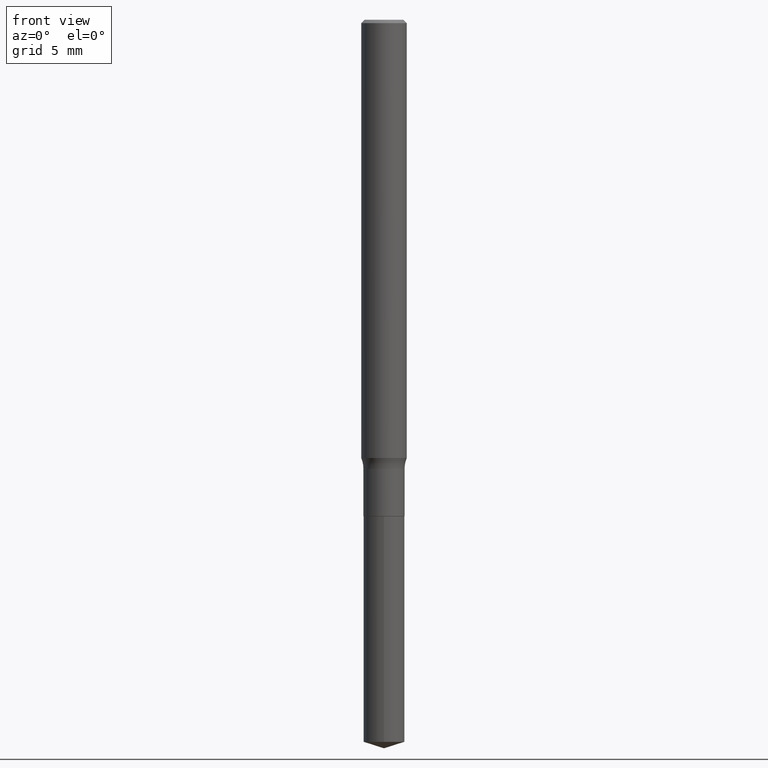
[diagram: clean part render]
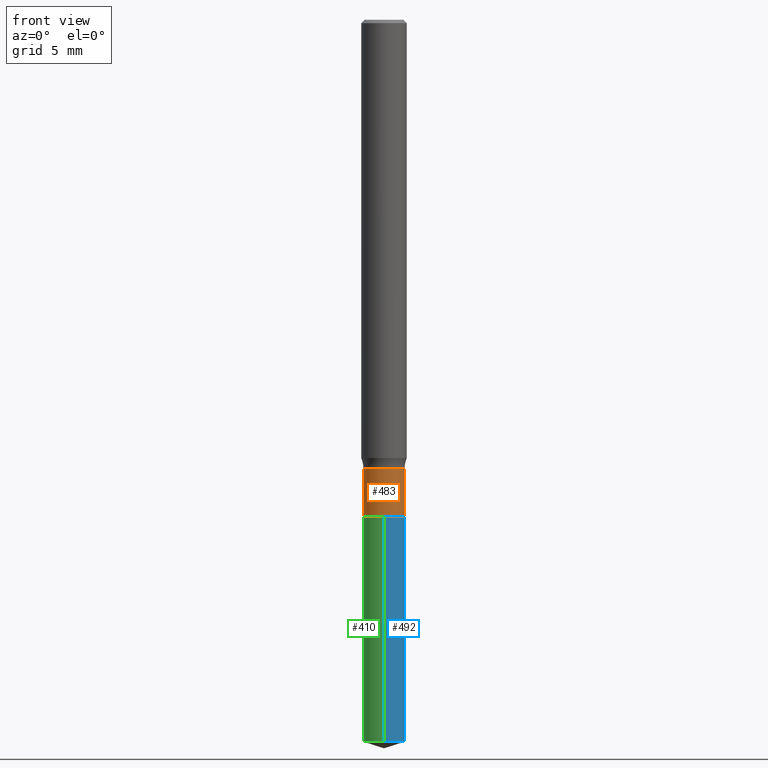
[diagram: same view with three faces highlighted in distinct colors, each labeled with its STEP entity id]
A machine part, front view with three faces highlighted in distinct colors.
Their STEP definitions:

[orange] entity #483 — the highlighted cylindrical surface (edge-blend (fillet) strip) has radius 1.4351 mm, axis along (-0, 0, 1).
#8 = VERTEX_POINT ( 'NONE', #432 ) ;
#25 = CARTESIAN_POINT ( 'NONE',  ( 0.05649999999999998079, -4.699533882082872201E-15, -1.232999999999999874 ) ) ;
#39 = DIRECTION ( 'NONE',  ( 1.000000000000000000, -6.982962677686265922E-15, 4.876176775795935793E-29 ) ) ;
#46 = DIRECTION ( 'NONE',  ( -2.445468806185136597E-29, 3.491481338843145583E-15, 1.000000000000000000 ) ) ;
#48 = VECTOR ( 'NONE', #217, 39.37007874015748143 ) ;
#58 = CARTESIAN_POINT ( 'NONE',  ( 0.05650000000000000161, -3.945373912892740553E-16, 2.755039878324703835E-30 ) ) ;
#113 = EDGE_CURVE ( 'NONE', #389, #264, #179, .T. ) ;
#115 = CIRCLE ( 'NONE', #206, 0.05650000000000000855 ) ;
#129 = ORIENTED_EDGE ( 'NONE', *, *, #221, .F. ) ;
#139 = DIRECTION ( 'NONE',  ( -2.445468806185136877E-29, 3.491481338843145188E-15, 1.000000000000000000 ) ) ;
#167 = FACE_OUTER_BOUND ( 'NONE', #353, .T. ) ;
#179 = LINE ( 'NONE', #335, #388 ) ;
#194 = CARTESIAN_POINT ( 'NONE',  ( 3.015263038026273343E-29, -4.304996490793598195E-15, -1.232999999999999874 ) ) ;
#197 = DIRECTION ( 'NONE',  ( -2.445468806185136597E-29, 3.491481338843145583E-15, 1.000000000000000000 ) ) ;
#201 = EDGE_CURVE ( 'NONE', #389, #8, #115, .T. ) ;
#206 = AXIS2_PLACEMENT_3D ( 'NONE', #235, #306, #378 ) ;
#212 = CARTESIAN_POINT ( 'NONE',  ( -0.05649999999999998079, -4.129613261779235411E-15, -1.232999999999999874 ) ) ;
#217 = DIRECTION ( 'NONE',  ( -2.445468806185136877E-29, 3.491481338843145188E-15, 1.000000000000000000 ) ) ;
#221 = EDGE_CURVE ( 'NONE', #264, #303, #478, .T. ) ;
#235 = CARTESIAN_POINT ( 'NONE',  ( 3.331951248427248949E-29, -4.757143324173785763E-15, -1.362500000000000044 ) ) ;
#252 = ORIENTED_EDGE ( 'NONE', *, *, #201, .T. ) ;
#264 = VERTEX_POINT ( 'NONE', #212 ) ;
#269 = AXIS2_PLACEMENT_3D ( 'NONE', #387, #46, #39 ) ;
#303 = VERTEX_POINT ( 'NONE', #25 ) ;
#306 = DIRECTION ( 'NONE',  ( -2.445468806185136597E-29, 3.491481338843145583E-15, 1.000000000000000000 ) ) ;
#307 = EDGE_CURVE ( 'NONE', #8, #303, #434, .T. ) ;
#335 = CARTESIAN_POINT ( 'NONE',  ( -0.05650000000000000161, 4.014566457044566165E-16, -2.779198325994021632E-30 ) ) ;
#340 = DIRECTION ( 'NONE',  ( 1.000000000000000000, -6.982962677686257244E-15, 0.000000000000000000 ) ) ;
#353 = EDGE_LOOP ( 'NONE', ( #429, #252, #375, #129 ) ) ;
#375 = ORIENTED_EDGE ( 'NONE', *, *, #307, .T. ) ;
#378 = DIRECTION ( 'NONE',  ( 1.000000000000000000, -6.982962677686271444E-15, 0.000000000000000000 ) ) ;
#387 = CARTESIAN_POINT ( 'NONE',  ( 0.000000000000000000, 0.000000000000000000, 0.000000000000000000 ) ) ;
#388 = VECTOR ( 'NONE', #139, 39.37007874015748143 ) ;
#389 = VERTEX_POINT ( 'NONE', #402 ) ;
#402 = CARTESIAN_POINT ( 'NONE',  ( -0.05650000000000000855, -4.129613261779235411E-15, -1.362500000000000044 ) ) ;
#420 = AXIS2_PLACEMENT_3D ( 'NONE', #194, #197, #340 ) ;
#429 = ORIENTED_EDGE ( 'NONE', *, *, #113, .F. ) ;
#432 = CARTESIAN_POINT ( 'NONE',  ( 0.05650000000000000855, -5.151680715463060558E-15, -1.362500000000000044 ) ) ;
#434 = LINE ( 'NONE', #58, #48 ) ;
#463 = CYLINDRICAL_SURFACE ( 'NONE', #269, 0.05650000000000000161 ) ;
#478 = CIRCLE ( 'NONE', #420, 0.05649999999999998079 ) ;
#483 = ADVANCED_FACE ( 'NONE', ( #167 ), #463, .T. ) ;

[blue] entity #492 — the highlighted cylindrical surface (edge-blend (fillet) strip) has radius 1.4351 mm, axis along (-0, 0, 1).
#13 = AXIS2_PLACEMENT_3D ( 'NONE', #246, #198, #345 ) ;
#20 = DIRECTION ( 'NONE',  ( -2.445141664925211370E-29, 3.491949823747082502E-15, 1.000000000000000000 ) ) ;
#44 = EDGE_CURVE ( 'NONE', #355, #80, #224, .T. ) ;
#75 = VECTOR ( 'NONE', #117, 39.37007874015748143 ) ;
#80 = VERTEX_POINT ( 'NONE', #214 ) ;
#89 = FACE_OUTER_BOUND ( 'NONE', #158, .T. ) ;
#92 = ORIENTED_EDGE ( 'NONE', *, *, #44, .T. ) ;
#93 = EDGE_CURVE ( 'NONE', #278, #355, #236, .T. ) ;
#99 = ORIENTED_EDGE ( 'NONE', *, *, #239, .F. ) ;
#109 = DIRECTION ( 'NONE',  ( -6.982962677686265922E-15, -1.000000000000000000, 4.835129192326129423E-15 ) ) ;
#114 = CARTESIAN_POINT ( 'NONE',  ( -3.945373912892407260E-16, -0.05650000000000475475, -1.362999999999999545 ) ) ;
#117 = DIRECTION ( 'NONE',  ( -2.445141664925211370E-29, 3.491949823747082107E-15, 1.000000000000000000 ) ) ;
#119 = ORIENTED_EDGE ( 'NONE', *, *, #93, .T. ) ;
#130 = AXIS2_PLACEMENT_3D ( 'NONE', #138, #362, #109 ) ;
#138 = CARTESIAN_POINT ( 'NONE',  ( 4.847170536771953151E-29, -6.921054175980769423E-15, -1.982185618428337515 ) ) ;
#147 = VECTOR ( 'NONE', #331, 39.37007874015748143 ) ;
#153 = VERTEX_POINT ( 'NONE', #114 ) ;
#158 = EDGE_LOOP ( 'NONE', ( #119, #92, #270, #99 ) ) ;
#175 = CARTESIAN_POINT ( 'NONE',  ( 3.333173982830341190E-29, -4.758889064843207266E-15, -1.362999999999999989 ) ) ;
#193 = CIRCLE ( 'NONE', #352, 0.05650000000000000161 ) ;
#198 = DIRECTION ( 'NONE',  ( -2.445141664925211370E-29, 3.491949823747082502E-15, 1.000000000000000000 ) ) ;
#214 = CARTESIAN_POINT ( 'NONE',  ( 4.014566457045050821E-16, 0.05649999999999523459, -1.363000000000000211 ) ) ;
#224 = LINE ( 'NONE', #286, #147 ) ;
#236 = CIRCLE ( 'NONE', #130, 0.05650000000000000161 ) ;
#239 = EDGE_CURVE ( 'NONE', #278, #153, #342, .T. ) ;
#246 = CARTESIAN_POINT ( 'NONE',  ( 3.333173982830341190E-29, -4.758889064843207266E-15, -1.362999999999999989 ) ) ;
#265 = EDGE_CURVE ( 'NONE', #153, #80, #193, .T. ) ;
#270 = ORIENTED_EDGE ( 'NONE', *, *, #265, .F. ) ;
#278 = VERTEX_POINT ( 'NONE', #319 ) ;
#286 = CARTESIAN_POINT ( 'NONE',  ( 4.014566457044898472E-16, 0.05649999999999524153, -1.363000000000000211 ) ) ;
#317 = CARTESIAN_POINT ( 'NONE',  ( 4.014566457045049342E-16, 0.05649999999999305578, -1.982185618428337737 ) ) ;
#319 = CARTESIAN_POINT ( 'NONE',  ( -3.945373912892254418E-16, -0.05650000000000690581, -1.982185618428337293 ) ) ;
#331 = DIRECTION ( 'NONE',  ( -2.445141664925211370E-29, 3.491949823747082107E-15, 1.000000000000000000 ) ) ;
#342 = LINE ( 'NONE', #453, #75 ) ;
#345 = DIRECTION ( 'NONE',  ( -6.982962677686265922E-15, -1.000000000000000000, 4.835129192326129423E-15 ) ) ;
#352 = AXIS2_PLACEMENT_3D ( 'NONE', #175, #20, #406 ) ;
#355 = VERTEX_POINT ( 'NONE', #317 ) ;
#362 = DIRECTION ( 'NONE',  ( -2.445141664925211370E-29, 3.491949823747082502E-15, 1.000000000000000000 ) ) ;
#406 = DIRECTION ( 'NONE',  ( -6.982962677686265922E-15, -1.000000000000000000, 4.835129192326129423E-15 ) ) ;
#453 = CARTESIAN_POINT ( 'NONE',  ( -3.945373912892407260E-16, -0.05650000000000475475, -1.362999999999999545 ) ) ;
#457 = CYLINDRICAL_SURFACE ( 'NONE', #13, 0.05650000000000000161 ) ;
#492 = ADVANCED_FACE ( 'NONE', ( #89 ), #457, .T. ) ;

[green] entity #410 — the highlighted cylindrical surface (edge-blend (fillet) strip) has radius 1.4351 mm, axis along (-0, 0, 1).
#27 = DIRECTION ( 'NONE',  ( -6.982962677686265922E-15, -1.000000000000000000, 4.835129192326129423E-15 ) ) ;
#43 = ORIENTED_EDGE ( 'NONE', *, *, #239, .T. ) ;
#44 = EDGE_CURVE ( 'NONE', #355, #80, #224, .T. ) ;
#75 = VECTOR ( 'NONE', #117, 39.37007874015748143 ) ;
#80 = VERTEX_POINT ( 'NONE', #214 ) ;
#100 = EDGE_CURVE ( 'NONE', #355, #278, #381, .T. ) ;
#102 = DIRECTION ( 'NONE',  ( -6.982962677686265922E-15, -1.000000000000000000, 4.835129192326129423E-15 ) ) ;
#108 = FACE_OUTER_BOUND ( 'NONE', #211, .T. ) ;
#112 = AXIS2_PLACEMENT_3D ( 'NONE', #299, #258, #408 ) ;
#114 = CARTESIAN_POINT ( 'NONE',  ( -3.945373912892407260E-16, -0.05650000000000475475, -1.362999999999999545 ) ) ;
#117 = DIRECTION ( 'NONE',  ( -2.445141664925211370E-29, 3.491949823747082107E-15, 1.000000000000000000 ) ) ;
#124 = AXIS2_PLACEMENT_3D ( 'NONE', #475, #144, #102 ) ;
#144 = DIRECTION ( 'NONE',  ( -2.445141664925211370E-29, 3.491949823747082502E-15, 1.000000000000000000 ) ) ;
#147 = VECTOR ( 'NONE', #331, 39.37007874015748143 ) ;
#153 = VERTEX_POINT ( 'NONE', #114 ) ;
#176 = DIRECTION ( 'NONE',  ( -2.445141664925211370E-29, 3.491949823747082502E-15, 1.000000000000000000 ) ) ;
#211 = EDGE_LOOP ( 'NONE', ( #276, #385, #43, #273 ) ) ;
#214 = CARTESIAN_POINT ( 'NONE',  ( 4.014566457045050821E-16, 0.05649999999999523459, -1.363000000000000211 ) ) ;
#224 = LINE ( 'NONE', #286, #147 ) ;
#239 = EDGE_CURVE ( 'NONE', #278, #153, #342, .T. ) ;
#258 = DIRECTION ( 'NONE',  ( -2.445141664925211370E-29, 3.491949823747082502E-15, 1.000000000000000000 ) ) ;
#273 = ORIENTED_EDGE ( 'NONE', *, *, #377, .F. ) ;
#276 = ORIENTED_EDGE ( 'NONE', *, *, #44, .F. ) ;
#278 = VERTEX_POINT ( 'NONE', #319 ) ;
#286 = CARTESIAN_POINT ( 'NONE',  ( 4.014566457044898472E-16, 0.05649999999999524153, -1.363000000000000211 ) ) ;
#299 = CARTESIAN_POINT ( 'NONE',  ( 3.333173982830341190E-29, -4.758889064843207266E-15, -1.362999999999999989 ) ) ;
#317 = CARTESIAN_POINT ( 'NONE',  ( 4.014566457045049342E-16, 0.05649999999999305578, -1.982185618428337737 ) ) ;
#319 = CARTESIAN_POINT ( 'NONE',  ( -3.945373912892254418E-16, -0.05650000000000690581, -1.982185618428337293 ) ) ;
#331 = DIRECTION ( 'NONE',  ( -2.445141664925211370E-29, 3.491949823747082107E-15, 1.000000000000000000 ) ) ;
#338 = CIRCLE ( 'NONE', #124, 0.05650000000000000161 ) ;
#342 = LINE ( 'NONE', #453, #75 ) ;
#355 = VERTEX_POINT ( 'NONE', #317 ) ;
#377 = EDGE_CURVE ( 'NONE', #80, #153, #338, .T. ) ;
#381 = CIRCLE ( 'NONE', #400, 0.05650000000000000161 ) ;
#385 = ORIENTED_EDGE ( 'NONE', *, *, #100, .T. ) ;
#400 = AXIS2_PLACEMENT_3D ( 'NONE', #407, #176, #27 ) ;
#407 = CARTESIAN_POINT ( 'NONE',  ( 4.847170536771953151E-29, -6.921054175980769423E-15, -1.982185618428337515 ) ) ;
#408 = DIRECTION ( 'NONE',  ( -6.982962677686265922E-15, -1.000000000000000000, 4.835129192326129423E-15 ) ) ;
#410 = ADVANCED_FACE ( 'NONE', ( #108 ), #431, .T. ) ;
#431 = CYLINDRICAL_SURFACE ( 'NONE', #112, 0.05650000000000000161 ) ;
#453 = CARTESIAN_POINT ( 'NONE',  ( -3.945373912892407260E-16, -0.05650000000000475475, -1.362999999999999545 ) ) ;
#475 = CARTESIAN_POINT ( 'NONE',  ( 3.333173982830341190E-29, -4.758889064843207266E-15, -1.362999999999999989 ) ) ;